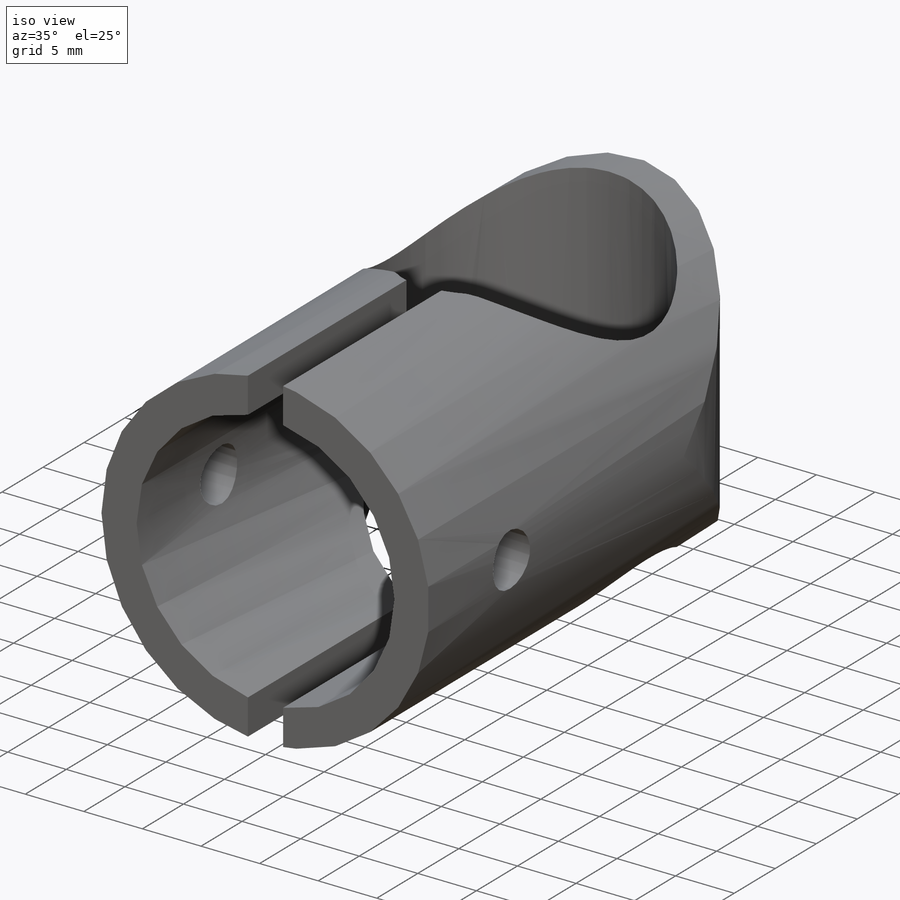
[diagram: iso view]
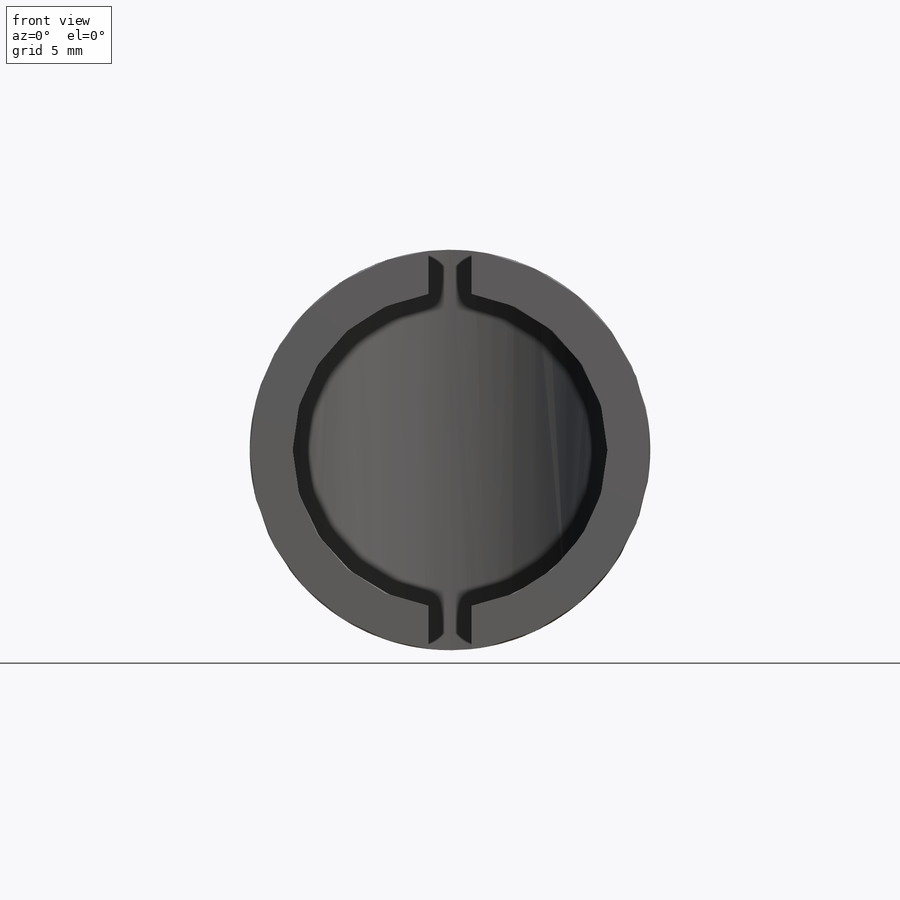
[diagram: front view]
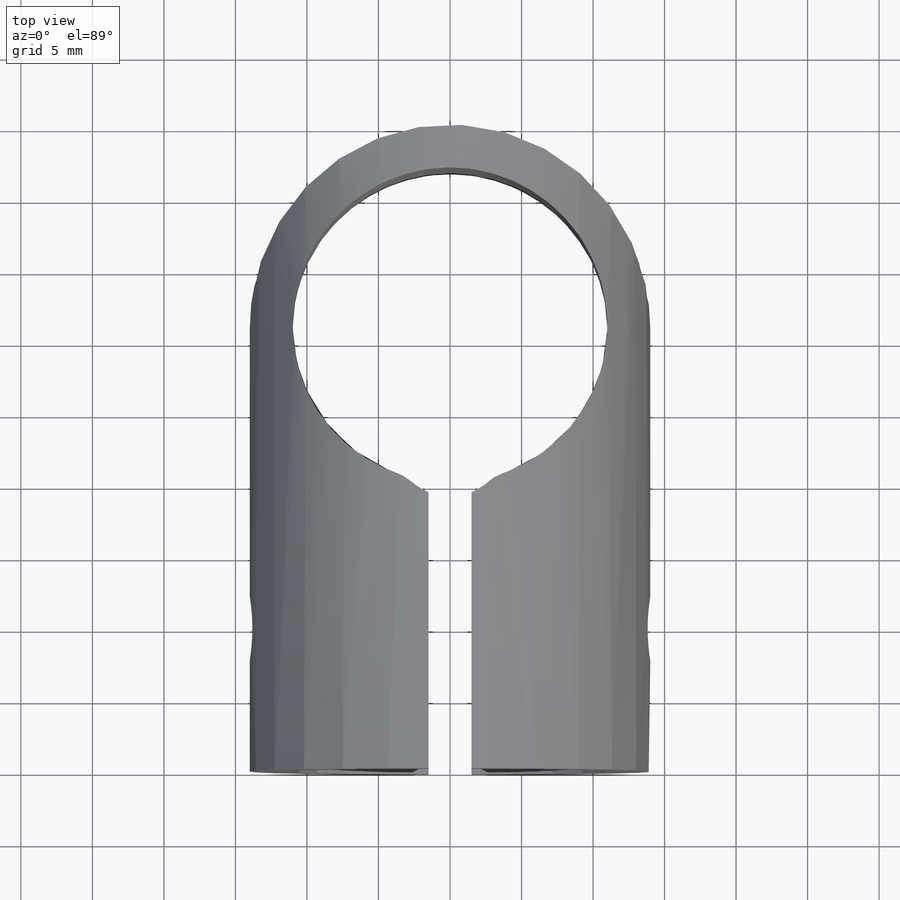
[diagram: top view]
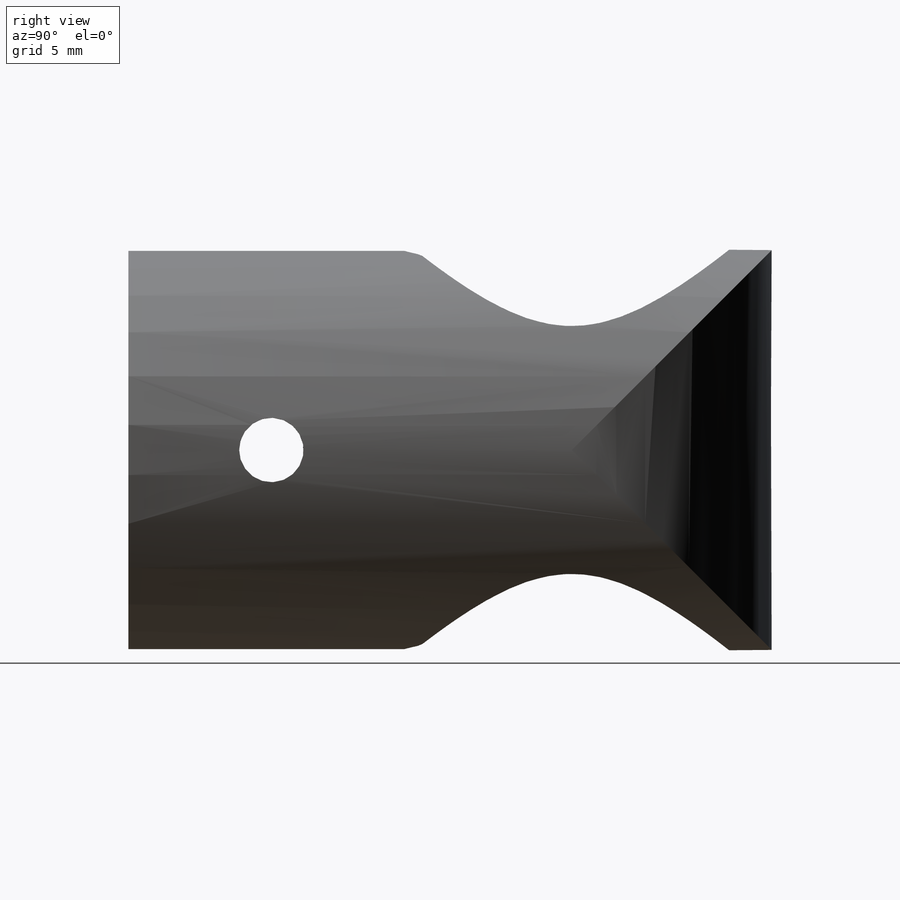
[diagram: right view]
SOLIDWORKS PART (.sldprt)
format: sldprt  version: not decoded by parser v0  size: 364,544 bytes
history: native  units: mm
features: sketch x8, plane x5, cut_extrude x4, material x1, extrude x1, mirror x1, hole x1, fillet x1 (+8 scaffold rows collapsed)
feature tree (30):
  scaffold x8  (default folders/planes/origin — collapsed)
  material  "Сплав 2024"
  plane  "Спереди"
  plane  "Сверху"
  plane  "Справа"
  sketch  "Эскиз1"  dims[D1=28.0mm]
  extrude  "Бобышка-Вытянуть1"  Depth=45mm
  plane  "Плоскость1"
  sketch  "Эскиз2"  dims[c1.D1=22.0mm c1.D3=12.5mm c2.D1=50.0mm c2.D2=14.0mm c2.D4=~17.514038mm c2.D3=~8.002838mm c3.D4=~2.271563mm c3.D3=3.0mm c4.D4=28.0mm c4.D3=1.5mm]
  cut_extrude  "Вырез-Вытянуть1"  [1 undecoded]
  sketch  "Эскиз3"  dims[D1=~5.348506mm]
  cut_extrude  "Вырез-Вытянуть2"  [1 undecoded]
  mirror  "Зеркальное отражение1"
  sketch  "Эскиз5"  dims[D1=22.0mm]
  cut_extrude  "Вырез-Вытянуть3"  [1 undecoded]
  plane  "Плоскость2"
  sketch  "Эскиз7"  dims[D1=10.0mm]
  hole  "Отверстие с зазором M41"  [1 undecoded]
  sketch  "Эскиз9"
  sketch  "Эскиз8"  dims[hole-wizard template sketch: 60 standard entries collapsed; hole parameters kept: c18.Глубина сквозного отверстия=28.0mm]
  sketch  "Эскиз10"  dims[D1=~9.269134mm D2=8.0mm]
  cut_extrude  "Вырез-Вытянуть5"  [1 undecoded]
  fillet  "Скругление2"  Radius=3mm
decode coverage: 9 of 16 modeling features carry decoded parameters
note: ~ marks probable driven/reference dimensions
note: 5 parameter values undecoded
summary: no parameter record found for 5 features
note: suppression state not decoded; provenance and decode notes live in map.json
